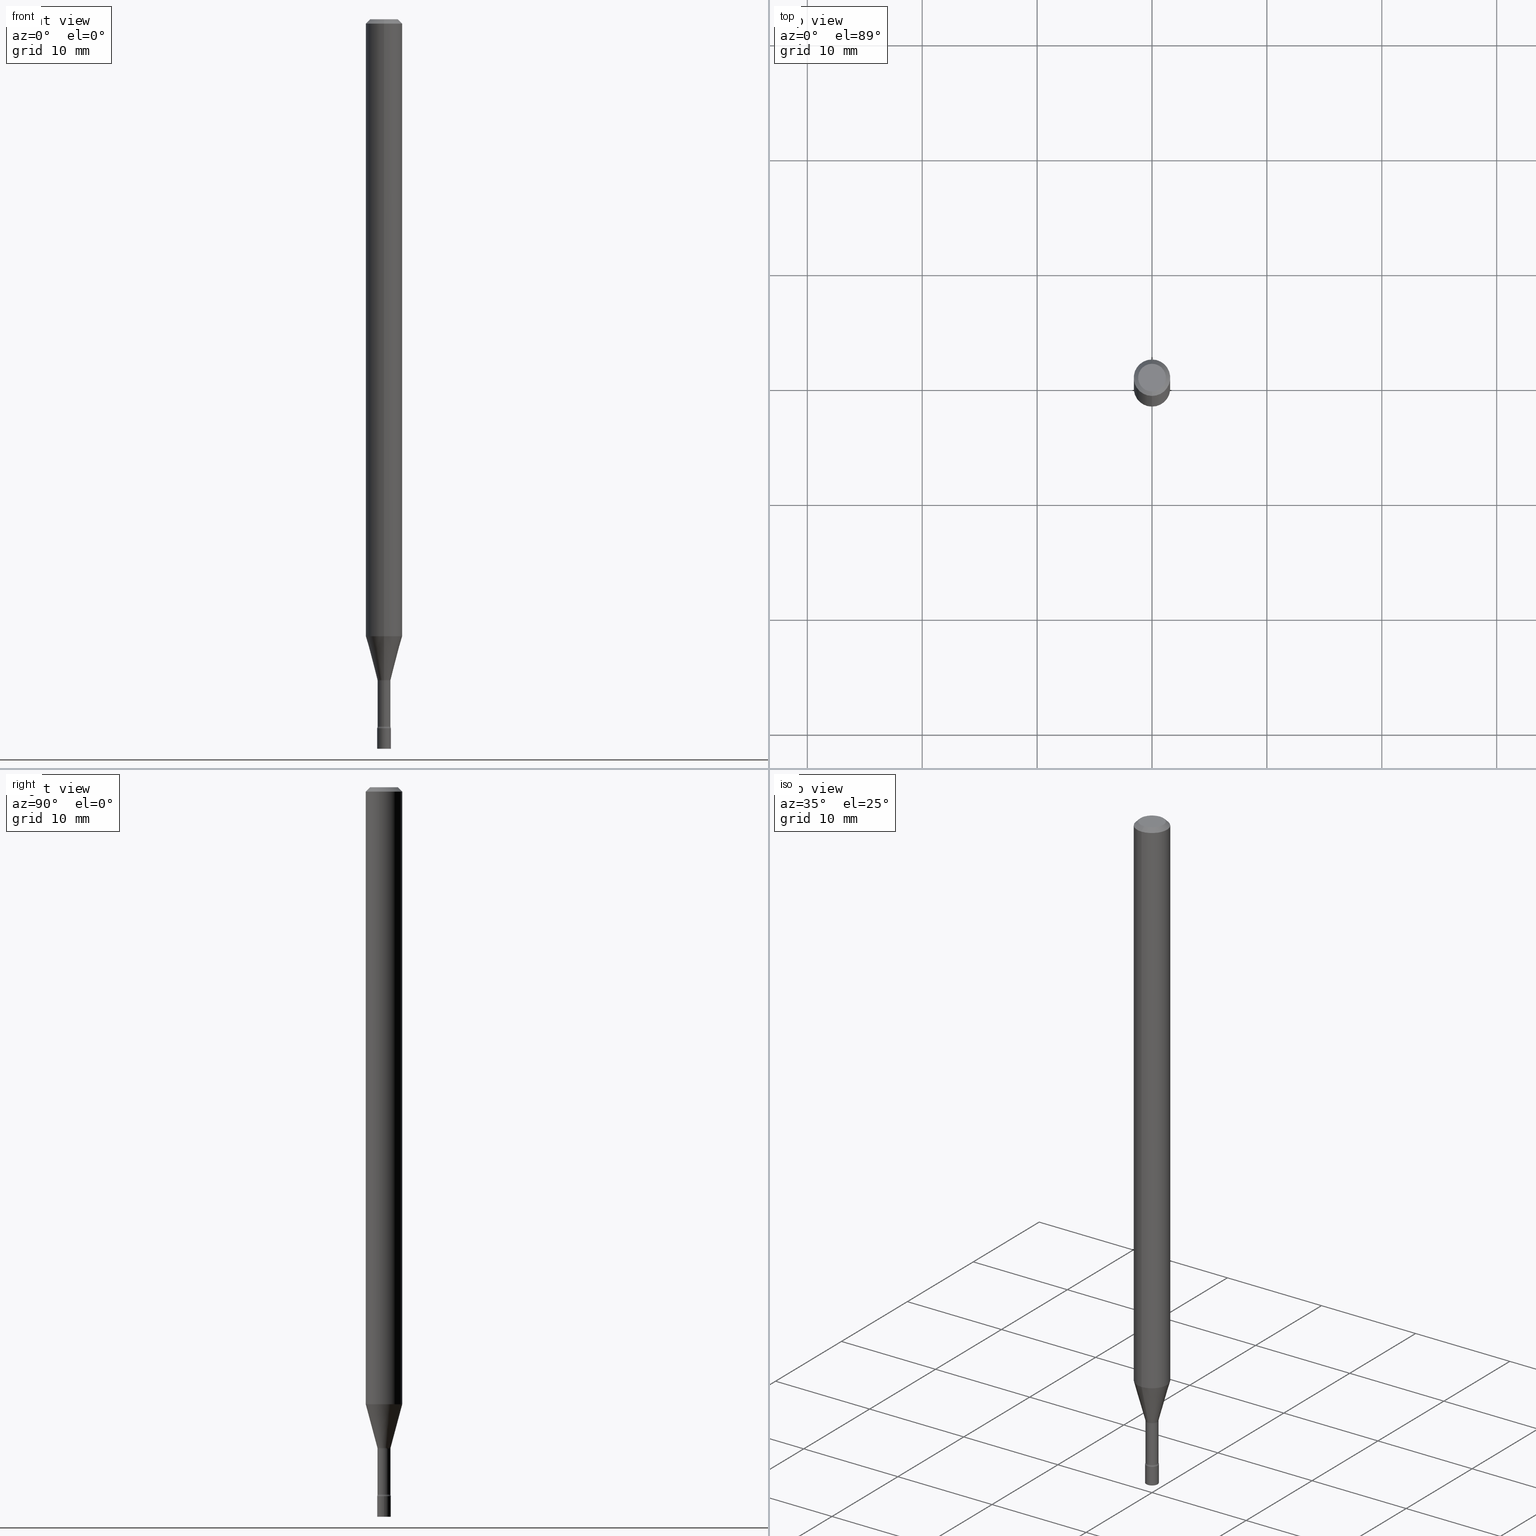
[diagram: canonical four-view strip — front | top / right | iso, engineering-drawing reading convention]
A machine part, canonical four-view strip (front | top / right | iso — engineering-drawing reading convention). The complete STEP part file that produces these views, byte-faithful:
ISO-10303-21;
HEADER;
FILE_DESCRIPTION (( 'STEP AP203' ),
    '1' );
FILE_NAME ('03544.STEP',
    '2024-03-08T21:44:47',
    ( '' ),
    ( '' ),
    'SwSTEP 2.0',
    'SolidWorks 2023',
    '' );
FILE_SCHEMA (( 'CONFIG_CONTROL_DESIGN' ));
ENDSEC;

DATA;
#1 = VERTEX_POINT ( 'NONE', #160 ) ;
#2 = CARTESIAN_POINT ( 'NONE',  ( 6.113672015462842613E-29, -8.728703347107864943E-15, -2.500000000000000000 ) ) ;
#3 = EDGE_CURVE ( 'NONE', #193, #208, #375, .T. ) ;
#4 = CARTESIAN_POINT ( 'NONE',  ( 4.440892098501140893E-16, 0.06249999999999258926, -2.114225147374217961 ) ) ;
#5 = ORIENTED_EDGE ( 'NONE', *, *, #495, .F. ) ;
#6 = DIRECTION ( 'NONE',  ( 1.000000000000000000, -6.982962677686265922E-15, 4.876176775795935793E-29 ) ) ;
#7 = DIRECTION ( 'NONE',  ( 2.438088387897960049E-29, -3.491481338843145188E-15, -1.000000000000000000 ) ) ;
#8 = ADVANCED_FACE ( 'NONE', ( #422 ), #297, .T. ) ;
#9 = EDGE_CURVE ( 'NONE', #315, #477, #474, .T. ) ;
#10 = FACE_OUTER_BOUND ( 'NONE', #309, .T. ) ;
#11 = CLOSED_SHELL ( 'NONE', ( #349, #296, #293, #503 ) ) ;
#12 = AXIS2_PLACEMENT_3D ( 'NONE', #249, #53, #165 ) ;
#13 = CARTESIAN_POINT ( 'NONE',  ( 3.668184765180877041E-31, -5.237248421261169202E-17, -0.01500000000000003067 ) ) ;
#14 = PERSON_AND_ORGANIZATION ( #132, #199 ) ;
#15 = EDGE_CURVE ( 'NONE', #400, #444, #18, .T. ) ;
#16 = DIRECTION ( 'NONE',  ( 2.445456510120580117E-29, -3.491498947507439183E-15, -1.000000000000000000 ) ) ;
#17 = MECHANICAL_CONTEXT ( 'NONE', #201, 'mechanical' ) ;
#18 = LINE ( 'NONE', #461, #106 ) ;
#19 = COORDINATED_UNIVERSAL_TIME_OFFSET ( 5, 0, .BEHIND. ) ;
#20 = VECTOR ( 'NONE', #73, 39.37007874015748143 ) ;
#21 = LOCAL_TIME ( 16, 44, 47.00000000000000000, #378 ) ;
#22 = CC_DESIGN_PERSON_AND_ORGANIZATION_ASSIGNMENT ( #63, #32, ( #162 ) ) ;
#23 = DIRECTION ( 'NONE',  ( -2.445456510120579836E-29, 3.491498947507438789E-15, 1.000000000000000000 ) ) ;
#24 = EDGE_CURVE ( 'NONE', #512, #1, #70, .T. ) ;
#25 = DIRECTION ( 'NONE',  ( 6.982962677686265922E-15, 1.000000000000000000, -3.483106191921935554E-15 ) ) ;
#26 = DIRECTION ( 'NONE',  ( -6.982962677686265922E-15, -1.000000000000000000, 3.491498947507438789E-15 ) ) ;
#27 = ADVANCED_FACE ( 'NONE', ( #382 ), #60, .F. ) ;
#28 = CARTESIAN_POINT ( 'NONE',  ( 0.000000000000000000, 0.000000000000000000, 0.000000000000000000 ) ) ;
#29 = AXIS2_PLACEMENT_3D ( 'NONE', #13, #16, #25 ) ;
#30 = CARTESIAN_POINT ( 'NONE',  ( -1.543234751768110940E-16, -0.02210000000000792234, -2.266974787463810870 ) ) ;
#31 = DIRECTION ( 'NONE',  ( -2.445456510120580117E-29, 3.491498947507439183E-15, 1.000000000000000000 ) ) ;
#32 = PERSON_AND_ORGANIZATION_ROLE ( 'classification_officer' ) ;
#33 = ORIENTED_EDGE ( 'NONE', *, *, #91, .F. ) ;
#34 = DIRECTION ( 'NONE',  ( 2.445456510120579836E-29, -3.491498947507438789E-15, -1.000000000000000000 ) ) ;
#35 = DIRECTION ( 'NONE',  ( -6.982962677686265922E-15, -1.000000000000000000, 0.000000000000000000 ) ) ;
#36 = DIRECTION ( 'NONE',  ( -1.000000000000000000, 6.982962677686265922E-15, -4.883557194083112901E-29 ) ) ;
#37 = ADVANCED_FACE ( 'NONE', ( #254 ), #242, .T. ) ;
#38 = CARTESIAN_POINT ( 'NONE',  ( 5.534294291500757291E-29, -7.901585088102242025E-15, -2.263092501787272948 ) ) ;
#39 = DIRECTION ( 'NONE',  ( -2.438088387897960049E-29, 3.491481338843145188E-15, 1.000000000000000000 ) ) ;
#40 = DIRECTION ( 'NONE',  ( -6.982962677686265922E-15, -1.000000000000000000, 0.000000000000000000 ) ) ;
#41 = ORIENTED_EDGE ( 'NONE', *, *, #281, .T. ) ;
#42 = APPROVAL ( #301, 'UNSPECIFIED' ) ;
#43 = AXIS2_PLACEMENT_3D ( 'NONE', #295, #34, #145 ) ;
#44 = LOCAL_TIME ( 16, 44, 47.00000000000000000, #363 ) ;
#45 = CARTESIAN_POINT ( 'NONE',  ( 0.000000000000000000, 0.000000000000000000, 0.000000000000000000 ) ) ;
#46 = VERTEX_POINT ( 'NONE', #395 ) ;
#47 = EDGE_LOOP ( 'NONE', ( #111, #52, #210, #147 ) ) ;
#48 = LINE ( 'NONE', #306, #276 ) ;
#49 = VECTOR ( 'NONE', #468, 39.37007874015748143 ) ;
#50 = APPROVAL_STATUS ( 'not_yet_approved' ) ;
#51 = ADVANCED_FACE ( 'NONE', ( #513 ), #200, .T. ) ;
#52 = ORIENTED_EDGE ( 'NONE', *, *, #133, .F. ) ;
#53 = DIRECTION ( 'NONE',  ( 0.000000000000000000, 0.000000000000000000, 1.000000000000000000 ) ) ;
#54 = DIMENSIONAL_EXPONENTS ( 1.000000000000000000, 0.000000000000000000, 0.000000000000000000, 0.000000000000000000, 0.000000000000000000, 0.000000000000000000, 0.000000000000000000 ) ;
#55 = DIRECTION ( 'NONE',  ( -2.445456510120580117E-29, 3.491498947507439183E-15, 1.000000000000000000 ) ) ;
#56 = DIRECTION ( 'NONE',  ( -2.445456510120580117E-29, 3.491498947507439183E-15, 1.000000000000000000 ) ) ;
#57 = DATE_AND_TIME ( #409, #44 ) ;
#58 = CARTESIAN_POINT ( 'NONE',  ( 1.570299446029823003E-16, 0.02210000000000002587, -7.716212673991450177E-17 ) ) ;
#59 = CARTESIAN_POINT ( 'NONE',  ( -0.02350000000000000352, -8.437778216675308581E-15, -2.429000000000000270 ) ) ;
#60 = PLANE ( 'NONE',  #43 ) ;
#61 = AXIS2_PLACEMENT_3D ( 'NONE', #195, #311, #345 ) ;
#62 = AXIS2_PLACEMENT_3D ( 'NONE', #124, #509, #146 ) ;
#63 = PERSON_AND_ORGANIZATION ( #132, #199 ) ;
#64 = CC_DESIGN_PERSON_AND_ORGANIZATION_ASSIGNMENT ( #458, #224, ( #404 ) ) ;
#65 = DIRECTION ( 'NONE',  ( -2.445456510120580117E-29, 3.491498947507439183E-15, 1.000000000000000000 ) ) ;
#66 = DIRECTION ( 'NONE',  ( 1.000000000000000000, -6.982962677686269866E-15, 0.000000000000000000 ) ) ;
#67 = DATE_AND_TIME ( #298, #442 ) ;
#68 = DIRECTION ( 'NONE',  ( -6.982962677686265922E-15, -1.000000000000000000, 3.491498947507439183E-15 ) ) ;
#69 = ORIENTED_EDGE ( 'NONE', *, *, #483, .F. ) ;
#70 = CIRCLE ( 'NONE', #441, 0.02350000000000000352 ) ;
#71 = CARTESIAN_POINT ( 'NONE',  ( -2.590679153421050798E-16, -0.03710000000000791831, -2.266974787463810870 ) ) ;
#72 = AXIS2_PLACEMENT_3D ( 'NONE', #71, #487, #104 ) ;
#73 = DIRECTION ( 'NONE',  ( -2.445468806185136877E-29, 3.491481338843145188E-15, 1.000000000000000000 ) ) ;
#74 = PRODUCT ( '03544', '03544', '', ( #17 ) ) ;
#75 = ORIENTED_EDGE ( 'NONE', *, *, #98, .F. ) ;
#76 = EDGE_LOOP ( 'NONE', ( #270, #486 ) ) ;
#77 = CARTESIAN_POINT ( 'NONE',  ( -0.02350000000000000352, -8.437778216675308581E-15, -2.500000000000000000 ) ) ;
#78 = MANIFOLD_SOLID_BREP ( 'Body-Move/Copy2[2]', #119 ) ;
#79 = PLANE ( 'NONE',  #289 ) ;
#80 = DIRECTION ( 'NONE',  ( -2.445456510120580117E-29, 3.491498947507439183E-15, 1.000000000000000000 ) ) ;
#81 = AXIS2_PLACEMENT_3D ( 'NONE', #388, #36, #341 ) ;
#82 = CC_DESIGN_SECURITY_CLASSIFICATION ( #162, ( #404 ) ) ;
#83 = EDGE_LOOP ( 'NONE', ( #156, #280, #437, #359 ) ) ;
#84 = DIRECTION ( 'NONE',  ( -2.445456510120580117E-29, 3.491498947507439183E-15, 1.000000000000000000 ) ) ;
#85 = CARTESIAN_POINT ( 'NONE',  ( 5.543788252282594761E-29, -7.915140084455795876E-15, -2.266974787463810870 ) ) ;
#86 = DIRECTION ( 'NONE',  ( -2.445456510120580117E-29, 3.491498947507438789E-15, 1.000000000000000000 ) ) ;
#87 = PRODUCT_DEFINITION ( 'UNKNOWN', '', #404, #211 ) ;
#88 = CIRCLE ( 'NONE', #151, 0.06250000000000000000 ) ;
#89 = DIRECTION ( 'NONE',  ( -2.445456510120580117E-29, 3.491498947507439183E-15, 1.000000000000000000 ) ) ;
#90 = CARTESIAN_POINT ( 'NONE',  ( 5.534294291500757291E-29, -7.901585088102242025E-15, -2.263092501787272948 ) ) ;
#91 = EDGE_CURVE ( 'NONE', #516, #1, #153, .T. ) ;
#92 = CIRCLE ( 'NONE', #81, 0.01499999999999997689 ) ;
#93 =( NAMED_UNIT ( * ) SI_UNIT ( $, .STERADIAN. ) SOLID_ANGLE_UNIT ( ) );
#94 = CIRCLE ( 'NONE', #120, 0.02350000000000000352 ) ;
#95 = EDGE_CURVE ( 'NONE', #46, #315, #92, .T. ) ;
#96 = EDGE_LOOP ( 'NONE', ( #272, #489, #343, #479 ) ) ;
#97 = ADVANCED_FACE ( 'NONE', ( #425 ), #222, .F. ) ;
#98 = EDGE_CURVE ( 'NONE', #208, #400, #103, .T. ) ;
#99 = CIRCLE ( 'NONE', #188, 0.06250000000000000000 ) ;
#100 = VECTOR ( 'NONE', #144, 39.37007874015749564 ) ;
#101 = LINE ( 'NONE', #429, #134 ) ;
#102 = FACE_OUTER_BOUND ( 'NONE', #123, .T. ) ;
#103 = LINE ( 'NONE', #140, #433 ) ;
#104 = DIRECTION ( 'NONE',  ( -6.982962677686265133E-15, -1.000000000000000000, 0.000000000000000000 ) ) ;
#105 = VERTEX_POINT ( 'NONE', #464 ) ;
#106 = VECTOR ( 'NONE', #176, 39.37007874015748143 ) ;
#107 = DIRECTION ( 'NONE',  ( -2.445456510120580117E-29, 3.491498947507439183E-15, 1.000000000000000000 ) ) ;
#108 = CIRCLE ( 'NONE', #368, 0.02210000000000000853 ) ;
#109 = EDGE_CURVE ( 'NONE', #319, #400, #88, .T. ) ;
#110 = ORIENTED_EDGE ( 'NONE', *, *, #365, .T. ) ;
#111 = ORIENTED_EDGE ( 'NONE', *, *, #332, .F. ) ;
#112 = DIRECTION ( 'NONE',  ( 1.000000000000000000, -6.982962677686265922E-15, 4.876176775795935793E-29 ) ) ;
#113 = FACE_OUTER_BOUND ( 'NONE', #116, .T. ) ;
#114 = ORIENTED_EDGE ( 'NONE', *, *, #495, .T. ) ;
#115 = EDGE_CURVE ( 'NONE', #265, #472, #403, .T. ) ;
#116 = EDGE_LOOP ( 'NONE', ( #243, #352, #519, #196 ) ) ;
#117 = DIRECTION ( 'NONE',  ( 1.000000000000000000, -6.982962677686228056E-15, 0.000000000000000000 ) ) ;
#118 = CIRCLE ( 'NONE', #177, 0.04749999999999999362 ) ;
#119 = CLOSED_SHELL ( 'NONE', ( #514, #358, #408, #8, #51, #360, #37, #258, #398, #27, #97, #179, #305, #436 ) ) ;
#120 = AXIS2_PLACEMENT_3D ( 'NONE', #484, #239, #401 ) ;
#121 = CARTESIAN_POINT ( 'NONE',  ( 5.940043730223697314E-29, -8.480808172050001970E-15, -2.429000000000000270 ) ) ;
#122 = ORIENTED_EDGE ( 'NONE', *, *, #135, .T. ) ;
#123 = EDGE_LOOP ( 'NONE', ( #269, #41, #440, #5 ) ) ;
#124 = CARTESIAN_POINT ( 'NONE',  ( 5.543816127150929473E-29, -7.915100166057801279E-15, -2.266974787463810870 ) ) ;
#125 = DIRECTION ( 'NONE',  ( -2.445456510120580117E-29, 3.491498947507439183E-15, 1.000000000000000000 ) ) ;
#126 = CARTESIAN_POINT ( 'NONE',  ( 1.669775429036828319E-16, 0.02349999999999150685, -2.429000000000000270 ) ) ;
#127 = CARTESIAN_POINT ( 'NONE',  ( 5.170245650506924061E-29, -7.381814876850842660E-15, -2.114225147374217961 ) ) ;
#128 = ORIENTED_EDGE ( 'NONE', *, *, #247, .T. ) ;
#129 = CIRCLE ( 'NONE', #161, 0.06250000000000000000 ) ;
#130 = CARTESIAN_POINT ( 'NONE',  ( 0.02350000000000000352, -8.892802970033491011E-15, -2.500000000000000000 ) ) ;
#131 = CARTESIAN_POINT ( 'NONE',  ( 7.070566630352411085E-46, -1.009499692429182059E-31, -2.891307451631506253E-17 ) ) ;
#132 = PERSON ( 'UNSPECIFIED', 'UNSPECIFIED', 'UNSPECIFIED', ('UNSPECIFIED'), ('UNSPECIFIED'), ('UNSPECIFIED') ) ;
#133 = EDGE_CURVE ( 'NONE', #472, #265, #118, .T. ) ;
#134 = VECTOR ( 'NONE', #505, 39.37007874015748143 ) ;
#135 = EDGE_CURVE ( 'NONE', #477, #315, #366, .T. ) ;
#136 = SHAPE_DEFINITION_REPRESENTATION ( #342, #212 ) ;
#137 = DIRECTION ( 'NONE',  ( -6.982962677686265922E-15, -1.000000000000000000, 4.370956789862821150E-15 ) ) ;
#138 = EDGE_CURVE ( 'NONE', #149, #351, #410, .T. ) ;
#139 = CALENDAR_DATE ( 2024, 8, 3 ) ;
#140 = CARTESIAN_POINT ( 'NONE',  ( 1.606616180941370852E-16, 0.02261111260565608697, -2.263092501787272948 ) ) ;
#141 = AXIS2_PLACEMENT_3D ( 'NONE', #379, #182, #186 ) ;
#142 = DIRECTION ( 'NONE',  ( -6.982962677686265922E-15, -1.000000000000000000, 3.491498947507439183E-15 ) ) ;
#143 = CIRCLE ( 'NONE', #221, 0.01500000000000002720 ) ;
#144 = DIRECTION ( 'NONE',  ( -1.807323732225328562E-15, -0.2588190451025179639, 0.9659258262890689783 ) ) ;
#145 = DIRECTION ( 'NONE',  ( 6.982962677686265922E-15, 1.000000000000000000, -3.491498947507438789E-15 ) ) ;
#146 = DIRECTION ( 'NONE',  ( -6.982962677686265922E-15, -1.000000000000000000, 3.491498947507439183E-15 ) ) ;
#147 = ORIENTED_EDGE ( 'NONE', *, *, #483, .T. ) ;
#148 = CARTESIAN_POINT ( 'NONE',  ( 0.000000000000000000, 0.000000000000000000, 0.000000000000000000 ) ) ;
#149 = VERTEX_POINT ( 'NONE', #30 ) ;
#150 = ORIENTED_EDGE ( 'NONE', *, *, #312, .F. ) ;
#151 = AXIS2_PLACEMENT_3D ( 'NONE', #127, #217, #164 ) ;
#152 = AXIS2_PLACEMENT_3D ( 'NONE', #148, #317, #267 ) ;
#153 = LINE ( 'NONE', #432, #20 ) ;
#154 = ORIENTED_EDGE ( 'NONE', *, *, #15, .F. ) ;
#155 = ORIENTED_EDGE ( 'NONE', *, *, #338, .T. ) ;
#156 = ORIENTED_EDGE ( 'NONE', *, *, #460, .F. ) ;
#157 = ORIENTED_EDGE ( 'NONE', *, *, #245, .F. ) ;
#158 = ORIENTED_EDGE ( 'NONE', *, *, #183, .F. ) ;
#159 = DIRECTION ( 'NONE',  ( -2.445468806185136597E-29, 3.491481338843145583E-15, 1.000000000000000000 ) ) ;
#160 = CARTESIAN_POINT ( 'NONE',  ( 0.02350000000000000352, -8.644907794975628038E-15, -2.429000000000000270 ) ) ;
#161 = AXIS2_PLACEMENT_3D ( 'NONE', #374, #501, #137 ) ;
#162 = SECURITY_CLASSIFICATION ( '', '', #504 ) ;
#163 = CYLINDRICAL_SURFACE ( 'NONE', #152, 0.02210000000000002587 ) ;
#164 = DIRECTION ( 'NONE',  ( -6.982962677686265922E-15, -1.000000000000000000, 4.370956789862821150E-15 ) ) ;
#165 = DIRECTION ( 'NONE',  ( 1.000000000000000000, 0.000000000000000000, 0.000000000000000000 ) ) ;
#166 = UNCERTAINTY_MEASURE_WITH_UNIT (LENGTH_MEASURE( 1.000000000000000082E-05 ), #406, 'distance_accuracy_value', 'NONE');
#167 = DIRECTION ( 'NONE',  ( 7.105427357601000281E-15, 1.000000000000000000, 0.000000000000000000 ) ) ;
#168 = EDGE_CURVE ( 'NONE', #105, #46, #384, .T. ) ;
#169 = AXIS2_PLACEMENT_3D ( 'NONE', #244, #89, #327 ) ;
#170 = CC_DESIGN_APPROVAL ( #333, ( #404 ) ) ;
#171 = CARTESIAN_POINT ( 'NONE',  ( 1.640996229256884133E-16, 0.02349999999999127440, -2.500000000000000000 ) ) ;
#172 = COORDINATED_UNIVERSAL_TIME_OFFSET ( 5, 0, .BEHIND. ) ;
#173 = CARTESIAN_POINT ( 'NONE',  ( 5.940013863082888993E-29, -8.480850943495569256E-15, -2.429000000000000270 ) ) ;
#174 = PERSON_AND_ORGANIZATION_ROLE ( 'design_owner' ) ;
#175 = DIRECTION ( 'NONE',  ( -6.982962677686265922E-15, -1.000000000000000000, 0.000000000000000000 ) ) ;
#176 = DIRECTION ( 'NONE',  ( -2.445456510120580117E-29, 3.491498947507438789E-15, 1.000000000000000000 ) ) ;
#177 = AXIS2_PLACEMENT_3D ( 'NONE', #131, #56, #496 ) ;
#178 = LOCAL_TIME ( 16, 44, 47.00000000000000000, #19 ) ;
#179 = ADVANCED_FACE ( 'NONE', ( #467 ), #357, .F. ) ;
#180 = CARTESIAN_POINT ( 'NONE',  ( 0.000000000000000000, 0.000000000000000000, 0.000000000000000000 ) ) ;
#181 = DATE_TIME_ROLE ( 'classification_date' ) ;
#182 = DIRECTION ( 'NONE',  ( -2.445456510120580117E-29, 3.491498947507439183E-15, 1.000000000000000000 ) ) ;
#183 = EDGE_CURVE ( 'NONE', #472, #444, #101, .T. ) ;
#184 = DIRECTION ( 'NONE',  ( -2.445456510120580117E-29, 3.491498947507439183E-15, 1.000000000000000000 ) ) ;
#185 = CARTESIAN_POINT ( 'NONE',  ( 5.534294291500757291E-29, -7.901585088102242025E-15, -2.263092501787272948 ) ) ;
#186 = DIRECTION ( 'NONE',  ( -6.982962677686265922E-15, -1.000000000000000000, 0.000000000000000000 ) ) ;
#187 = CARTESIAN_POINT ( 'NONE',  ( 5.543788252282594761E-29, -7.915140084455795876E-15, -2.266974787463810870 ) ) ;
#188 = AXIS2_PLACEMENT_3D ( 'NONE', #241, #364, #287 ) ;
#189 = ORIENTED_EDGE ( 'NONE', *, *, #168, .T. ) ;
#190 = APPROVAL_PERSON_ORGANIZATION ( #426, #333, #462 ) ;
#191 = CARTESIAN_POINT ( 'NONE',  ( 5.924569496155794395E-29, -8.458715066898005273E-15, -2.422672283192177645 ) ) ;
#192 = EDGE_LOOP ( 'NONE', ( #430, #189, #114, #268 ) ) ;
#193 = VERTEX_POINT ( 'NONE', #499 ) ;
#194 = LINE ( 'NONE', #223, #49 ) ;
#195 = CARTESIAN_POINT ( 'NONE',  ( 0.000000000000000000, 0.000000000000000000, 0.000000000000000000 ) ) ;
#196 = ORIENTED_EDGE ( 'NONE', *, *, #24, .F. ) ;
#197 = AXIS2_PLACEMENT_3D ( 'NONE', #492, #125, #367 ) ;
#198 = DIRECTION ( 'NONE',  ( -2.445456510120580117E-29, 3.491498947507439183E-15, 1.000000000000000000 ) ) ;
#199 = ORGANIZATION ( 'UNSPECIFIED', 'UNSPECIFIED', '' ) ;
#200 = CYLINDRICAL_SURFACE ( 'NONE', #61, 0.06250000000000000000 ) ;
#201 = APPLICATION_CONTEXT ( 'configuration controlled 3d designs of mechanical parts and assemblies' ) ;
#202 = FACE_OUTER_BOUND ( 'NONE', #47, .T. ) ;
#203 = ORIENTED_EDGE ( 'NONE', *, *, #460, .T. ) ;
#204 = DIRECTION ( 'NONE',  ( -2.445468806185136597E-29, 3.491481338843145583E-15, 1.000000000000000000 ) ) ;
#205 = CIRCLE ( 'NONE', #226, 0.02261111260566398690 ) ;
#206 = ORIENTED_EDGE ( 'NONE', *, *, #312, .T. ) ;
#207 = PERSON_AND_ORGANIZATION_ROLE ( 'creator' ) ;
#208 = VERTEX_POINT ( 'NONE', #292 ) ;
#209 = PERSON_AND_ORGANIZATION ( #132, #199 ) ;
#210 = ORIENTED_EDGE ( 'NONE', *, *, #183, .T. ) ;
#211 = DESIGN_CONTEXT ( 'detailed design', #266, 'design' ) ;
#212 = ADVANCED_BREP_SHAPE_REPRESENTATION ( '03544', ( #421, #78, #12 ), #500 ) ;
#213 = CARTESIAN_POINT ( 'NONE',  ( 3.840629472727447874E-16, 0.04749999999999999362, -1.947592745229183872E-16 ) ) ;
#214 = AXIS2_PLACEMENT_3D ( 'NONE', #121, #204, #353 ) ;
#215 = AXIS2_PLACEMENT_3D ( 'NONE', #325, #55, #286 ) ;
#216 = FACE_OUTER_BOUND ( 'NONE', #235, .T. ) ;
#217 = DIRECTION ( 'NONE',  ( -2.445456510120580117E-29, 3.491498947507439183E-15, 1.000000000000000000 ) ) ;
#218 = EDGE_CURVE ( 'NONE', #400, #319, #129, .T. ) ;
#219 = DIRECTION ( 'NONE',  ( -6.982962677686265922E-15, -1.000000000000000000, 0.000000000000000000 ) ) ;
#220 = AXIS2_PLACEMENT_3D ( 'NONE', #336, #184, #142 ) ;
#221 = AXIS2_PLACEMENT_3D ( 'NONE', #387, #407, #167 ) ;
#222 = PLANE ( 'NONE',  #411 ) ;
#223 = CARTESIAN_POINT ( 'NONE',  ( -0.02350000000000000352, 1.669775429036235687E-16, -1.155949746209903035E-30 ) ) ;
#224 = PERSON_AND_ORGANIZATION_ROLE ( 'design_supplier' ) ;
#225 = DIRECTION ( 'NONE',  ( 7.105427357600997914E-15, 1.000000000000000000, 0.000000000000000000 ) ) ;
#226 = AXIS2_PLACEMENT_3D ( 'NONE', #294, #198, #314 ) ;
#227 = ORIENTED_EDGE ( 'NONE', *, *, #218, .T. ) ;
#228 = ORIENTED_EDGE ( 'NONE', *, *, #391, .T. ) ;
#229 = DIRECTION ( 'NONE',  ( -2.445456510120580117E-29, 3.491498947507438789E-15, 1.000000000000000000 ) ) ;
#230 = ORIENTED_EDGE ( 'NONE', *, *, #115, .F. ) ;
#231 = ORIENTED_EDGE ( 'NONE', *, *, #320, .F. ) ;
#232 = FACE_OUTER_BOUND ( 'NONE', #348, .T. ) ;
#233 = ORIENTED_EDGE ( 'NONE', *, *, #109, .T. ) ;
#234 = CARTESIAN_POINT ( 'NONE',  ( 5.940043730223697314E-29, -8.480808172050001970E-15, -2.429000000000000270 ) ) ;
#235 = EDGE_LOOP ( 'NONE', ( #157, #203, #110, #443 ) ) ;
#236 = ORIENTED_EDGE ( 'NONE', *, *, #326, .F. ) ;
#237 = CIRCLE ( 'NONE', #214, 0.02350000000000000352 ) ;
#238 = AXIS2_PLACEMENT_3D ( 'NONE', #38, #31, #35 ) ;
#239 = DIRECTION ( 'NONE',  ( -2.445468806185136597E-29, 3.491481338843145583E-15, 1.000000000000000000 ) ) ;
#240 = APPLICATION_PROTOCOL_DEFINITION ( 'international standard', 'config_control_design', 1994, #201 ) ;
#241 = CARTESIAN_POINT ( 'NONE',  ( 3.668184765180877041E-31, -5.237248421261169202E-17, -0.01500000000000003067 ) ) ;
#242 = CONICAL_SURFACE ( 'NONE', #329, 0.02261111260566398690, 0.2617993877991501295 ) ;
#243 = ORIENTED_EDGE ( 'NONE', *, *, #338, .F. ) ;
#244 = CARTESIAN_POINT ( 'NONE',  ( 5.940013863082888993E-29, -8.480850943495569256E-15, -2.429000000000000270 ) ) ;
#245 = EDGE_CURVE ( 'NONE', #208, #193, #205, .T. ) ;
#246 = ORIENTED_EDGE ( 'NONE', *, *, #416, .F. ) ;
#247 = EDGE_CURVE ( 'NONE', #516, #389, #517, .T. ) ;
#248 = CC_DESIGN_PERSON_AND_ORGANIZATION_ASSIGNMENT ( #260, #423, ( #404 ) ) ;
#249 = CARTESIAN_POINT ( 'NONE',  ( 0.000000000000000000, 0.000000000000000000, 0.000000000000000000 ) ) ;
#250 = APPROVAL_ROLE ( '' ) ;
#251 = CARTESIAN_POINT ( 'NONE',  ( -3.773273898774340269E-16, -0.04749999999999999362, 1.369331254902882868E-16 ) ) ;
#252 = VECTOR ( 'NONE', #229, 39.37007874015748143 ) ;
#253 = EDGE_CURVE ( 'NONE', #386, #444, #99, .T. ) ;
#254 = FACE_OUTER_BOUND ( 'NONE', #485, .T. ) ;
#255 = CIRCLE ( 'NONE', #498, 0.01499999999999997689 ) ;
#256 = APPROVAL_DATE_TIME ( #67, #333 ) ;
#257 = APPROVAL_PERSON_ORGANIZATION ( #209, #515, #250 ) ;
#258 = ADVANCED_FACE ( 'NONE', ( #10 ), #323, .T. ) ;
#259 = CARTESIAN_POINT ( 'NONE',  ( 3.668184765180877041E-31, -5.237248421261169202E-17, -0.01500000000000003067 ) ) ;
#260 = PERSON_AND_ORGANIZATION ( #132, #199 ) ;
#261 = LINE ( 'NONE', #431, #252 ) ;
#262 = AXIS2_PLACEMENT_3D ( 'NONE', #334, #65, #424 ) ;
#263 = AXIS2_PLACEMENT_3D ( 'NONE', #171, #7, #322 ) ;
#264 = EDGE_LOOP ( 'NONE', ( #230, #480, #284, #158 ) ) ;
#265 = VERTEX_POINT ( 'NONE', #251 ) ;
#266 = APPLICATION_CONTEXT ( 'configuration controlled 3d designs of mechanical parts and assemblies' ) ;
#267 = DIRECTION ( 'NONE',  ( -6.982962677686265922E-15, -1.000000000000000000, 3.491498947507439578E-15 ) ) ;
#268 = ORIENTED_EDGE ( 'NONE', *, *, #365, .F. ) ;
#269 = ORIENTED_EDGE ( 'NONE', *, *, #320, .T. ) ;
#270 = ORIENTED_EDGE ( 'NONE', *, *, #133, .T. ) ;
#271 = FACE_OUTER_BOUND ( 'NONE', #313, .T. ) ;
#272 = ORIENTED_EDGE ( 'NONE', *, *, #3, .T. ) ;
#273 = DIRECTION ( 'NONE',  ( 1.000000000000000000, -6.982962677686265922E-15, 4.876176775795935793E-29 ) ) ;
#274 = ORIENTED_EDGE ( 'NONE', *, *, #95, .F. ) ;
#275 = DIRECTION ( 'NONE',  ( 1.000000000000000000, -7.105427357601001070E-15, 4.926315724186025825E-29 ) ) ;
#276 = VECTOR ( 'NONE', #300, 39.37007874015748143 ) ;
#277 = CC_DESIGN_APPROVAL ( #515, ( #87 ) ) ;
#278 = CARTESIAN_POINT ( 'NONE',  ( -1.578925554262577325E-16, -0.02261111260567189030, -2.263092501787272948 ) ) ;
#279 = CARTESIAN_POINT ( 'NONE',  ( -1.543234751768666594E-16, -0.02210000000000002587, 7.716212673991450177E-17 ) ) ;
#280 = ORIENTED_EDGE ( 'NONE', *, *, #3, .F. ) ;
#281 = EDGE_CURVE ( 'NONE', #105, #351, #412, .T. ) ;
#282 = DIRECTION ( 'NONE',  ( -2.445456510120580117E-29, 3.491498947507439183E-15, 1.000000000000000000 ) ) ;
#283 = VECTOR ( 'NONE', #86, 39.37007874015748143 ) ;
#284 = ORIENTED_EDGE ( 'NONE', *, *, #253, .T. ) ;
#285 = LENGTH_MEASURE_WITH_UNIT ( LENGTH_MEASURE( 0.02539999999999999897 ), #451 );
#286 = DIRECTION ( 'NONE',  ( -6.982962677686265922E-15, -1.000000000000000000, 3.483106191921935554E-15 ) ) ;
#287 = DIRECTION ( 'NONE',  ( -6.982962677686265922E-15, -1.000000000000000000, 3.483106191921935554E-15 ) ) ;
#288 = CALENDAR_DATE ( 2024, 8, 3 ) ;
#289 = AXIS2_PLACEMENT_3D ( 'NONE', #234, #39, #273 ) ;
#290 = DIRECTION ( 'NONE',  ( -6.982962677686265922E-15, -1.000000000000000000, 0.000000000000000000 ) ) ;
#291 = COORDINATED_UNIVERSAL_TIME_OFFSET ( 5, 0, .BEHIND. ) ;
#292 = CARTESIAN_POINT ( 'NONE',  ( 3.023754139721258091E-16, 0.02261111260565609044, -2.263092501787272948 ) ) ;
#293 = ADVANCED_FACE ( 'NONE', ( #113 ), #399, .T. ) ;
#294 = CARTESIAN_POINT ( 'NONE',  ( 5.534294291500757291E-29, -7.901585088102242025E-15, -2.263092501787272948 ) ) ;
#295 = CARTESIAN_POINT ( 'NONE',  ( 3.316907271900976096E-16, 0.04749999999999999362, -1.803027372647608806E-16 ) ) ;
#296 = ADVANCED_FACE ( 'NONE', ( #271 ), #79, .T. ) ;
#297 = CONICAL_SURFACE ( 'NONE', #29, 0.06250000000000000000, 0.7853981633974483900 ) ;
#298 = CALENDAR_DATE ( 2024, 8, 3 ) ;
#299 = CC_DESIGN_APPROVAL ( #42, ( #162 ) ) ;
#300 = DIRECTION ( 'NONE',  ( -4.851104656540964275E-15, -0.7071067811865500152, -0.7071067811865450192 ) ) ;
#301 = APPROVAL_STATUS ( 'not_yet_approved' ) ;
#302 = CARTESIAN_POINT ( 'NONE',  ( 2.636113549670565381E-16, 0.03709999999999156334, -2.422672283192177645 ) ) ;
#303 = CARTESIAN_POINT ( 'NONE',  ( 4.440892098501146810E-16, 0.06249999999999995837, -0.01500000000000024751 ) ) ;
#304 = DIRECTION ( 'NONE',  ( -2.445456510120580117E-29, 3.491498947507439183E-15, 1.000000000000000000 ) ) ;
#305 = ADVANCED_FACE ( 'NONE', ( #438 ), #457, .T. ) ;
#306 = CARTESIAN_POINT ( 'NONE',  ( -4.287811248607203282E-16, -0.06250000000000005551, -0.01499999999999981209 ) ) ;
#307 = CIRCLE ( 'NONE', #72, 0.01500000000000002720 ) ;
#308 = EDGE_LOOP ( 'NONE', ( #150, #231, #394, #390 ) ) ;
#309 = EDGE_LOOP ( 'NONE', ( #154, #227, #447, #69 ) ) ;
#310 = DIRECTION ( 'NONE',  ( -2.445468806185136597E-29, 3.491481338843145583E-15, 1.000000000000000000 ) ) ;
#311 = DIRECTION ( 'NONE',  ( -2.445456510120580117E-29, 3.491498947507439183E-15, 1.000000000000000000 ) ) ;
#312 = EDGE_CURVE ( 'NONE', #105, #477, #255, .T. ) ;
#313 = EDGE_LOOP ( 'NONE', ( #347, #475 ) ) ;
#314 = DIRECTION ( 'NONE',  ( -6.982962677686265922E-15, -1.000000000000000000, 0.000000000000000000 ) ) ;
#315 = VERTEX_POINT ( 'NONE', #340 ) ;
#316 = ORIENTED_EDGE ( 'NONE', *, *, #168, .F. ) ;
#317 = DIRECTION ( 'NONE',  ( -2.445456510120580117E-29, 3.491498947507439183E-15, 1.000000000000000000 ) ) ;
#318 = AXIS2_PLACEMENT_3D ( 'NONE', #488, #493, #413 ) ;
#319 = VERTEX_POINT ( 'NONE', #511 ) ;
#320 = EDGE_CURVE ( 'NONE', #46, #105, #396, .T. ) ;
#321 = LINE ( 'NONE', #279, #450 ) ;
#322 = DIRECTION ( 'NONE',  ( -1.000000000000000000, 6.982962677686265922E-15, -4.876176775795935793E-29 ) ) ;
#323 = CYLINDRICAL_SURFACE ( 'NONE', #197, 0.06250000000000000000 ) ;
#324 = TOROIDAL_SURFACE ( 'NONE', #420, 0.03710000000000002185, 0.01499999999999997516 ) ;
#325 = CARTESIAN_POINT ( 'NONE',  ( 3.668184765180877041E-31, -5.237248421261169202E-17, -0.01500000000000003067 ) ) ;
#326 = EDGE_CURVE ( 'NONE', #1, #512, #237, .T. ) ;
#327 = DIRECTION ( 'NONE',  ( -6.982962677686265922E-15, -1.000000000000000000, 0.000000000000000000 ) ) ;
#328 = DIRECTION ( 'NONE',  ( -2.445456510120580117E-29, 3.491498947507438789E-15, 1.000000000000000000 ) ) ;
#329 = AXIS2_PLACEMENT_3D ( 'NONE', #185, #80, #40 ) ;
#330 = AXIS2_PLACEMENT_3D ( 'NONE', #259, #392, #427 ) ;
#331 = CARTESIAN_POINT ( 'NONE',  ( 5.940043730223697314E-29, -8.480808172050001970E-15, -2.429000000000000270 ) ) ;
#332 = EDGE_CURVE ( 'NONE', #265, #386, #48, .T. ) ;
#333 = APPROVAL ( #373, 'UNSPECIFIED' ) ;
#334 = CARTESIAN_POINT ( 'NONE',  ( 5.924539706821000383E-29, -8.458757726920932934E-15, -2.422672283192177645 ) ) ;
#335 = CALENDAR_DATE ( 2024, 8, 3 ) ;
#336 = CARTESIAN_POINT ( 'NONE',  ( 5.924569496155794395E-29, -8.458715066898005273E-15, -2.422672283192177645 ) ) ;
#337 = FACE_OUTER_BOUND ( 'NONE', #83, .T. ) ;
#338 = EDGE_CURVE ( 'NONE', #389, #512, #194, .T. ) ;
#339 = ORIENTED_EDGE ( 'NONE', *, *, #9, .F. ) ;
#340 = CARTESIAN_POINT ( 'NONE',  ( -1.640996229255677915E-16, -0.02350000000000847244, -2.429000000000000270 ) ) ;
#341 = DIRECTION ( 'NONE',  ( -6.982962677686262766E-15, -1.000000000000000000, 0.000000000000000000 ) ) ;
#342 = PRODUCT_DEFINITION_SHAPE ( 'NONE', 'NONE',  #87 ) ;
#343 = ORIENTED_EDGE ( 'NONE', *, *, #109, .F. ) ;
#344 = ORIENTED_EDGE ( 'NONE', *, *, #253, .F. ) ;
#345 = DIRECTION ( 'NONE',  ( -6.982962677686265922E-15, -1.000000000000000000, 3.491498947507438789E-15 ) ) ;
#346 = AXIS2_PLACEMENT_3D ( 'NONE', #180, #304, #393 ) ;
#347 = ORIENTED_EDGE ( 'NONE', *, *, #326, .T. ) ;
#348 = EDGE_LOOP ( 'NONE', ( #128, #155, #236, #33 ) ) ;
#349 = ADVANCED_FACE ( 'NONE', ( #232 ), #380, .T. ) ;
#350 = ORIENTED_EDGE ( 'NONE', *, *, #245, .T. ) ;
#351 = VERTEX_POINT ( 'NONE', #470 ) ;
#352 = ORIENTED_EDGE ( 'NONE', *, *, #416, .T. ) ;
#353 = DIRECTION ( 'NONE',  ( 1.000000000000000000, -6.982962677686269866E-15, 0.000000000000000000 ) ) ;
#354 = ORIENTED_EDGE ( 'NONE', *, *, #247, .F. ) ;
#355 = ORIENTED_EDGE ( 'NONE', *, *, #135, .F. ) ;
#356 = DIRECTION ( 'NONE',  ( -2.445468806185136597E-29, 3.491481338843145583E-15, 1.000000000000000000 ) ) ;
#357 = TOROIDAL_SURFACE ( 'NONE', #220, 0.03710000000000002185, 0.01499999999999997516 ) ;
#358 = ADVANCED_FACE ( 'NONE', ( #102 ), #163, .T. ) ;
#359 = ORIENTED_EDGE ( 'NONE', *, *, #138, .T. ) ;
#360 = ADVANCED_FACE ( 'NONE', ( #383 ), #491, .T. ) ;
#361 = CC_DESIGN_PERSON_AND_ORGANIZATION_ASSIGNMENT ( #402, #174, ( #74 ) ) ;
#362 = DATE_AND_TIME ( #288, #385 ) ;
#363 = COORDINATED_UNIVERSAL_TIME_OFFSET ( 5, 0, .BEHIND. ) ;
#364 = DIRECTION ( 'NONE',  ( -2.445456510120580117E-29, 3.491498947507439183E-15, 1.000000000000000000 ) ) ;
#365 = EDGE_CURVE ( 'NONE', #351, #149, #108, .T. ) ;
#366 = CIRCLE ( 'NONE', #169, 0.02350000000000000352 ) ;
#367 = DIRECTION ( 'NONE',  ( -6.982962677686265922E-15, -1.000000000000000000, 3.491498947507438789E-15 ) ) ;
#368 = AXIS2_PLACEMENT_3D ( 'NONE', #187, #107, #435 ) ;
#369 = DIRECTION ( 'NONE',  ( -2.445456510120580117E-29, 3.491498947507439183E-15, 1.000000000000000000 ) ) ;
#370 = APPROVAL_DATE_TIME ( #57, #515 ) ;
#371 = DIRECTION ( 'NONE',  ( -6.982962677686266711E-15, -1.000000000000000000, 3.491498947507439578E-15 ) ) ;
#372 = DIRECTION ( 'NONE',  ( -2.445456510120580117E-29, 3.491498947507439183E-15, 1.000000000000000000 ) ) ;
#373 = APPROVAL_STATUS ( 'not_yet_approved' ) ;
#374 = CARTESIAN_POINT ( 'NONE',  ( 5.170245650506924061E-29, -7.381814876850842660E-15, -2.114225147374217961 ) ) ;
#375 = CIRCLE ( 'NONE', #482, 0.02261111260566398690 ) ;
#376 = AXIS2_PLACEMENT_3D ( 'NONE', #28, #356, #6 ) ;
#377 = DATE_AND_TIME ( #335, #21 ) ;
#378 = COORDINATED_UNIVERSAL_TIME_OFFSET ( 5, 0, .BEHIND. ) ;
#379 = CARTESIAN_POINT ( 'NONE',  ( 5.924539706821000383E-29, -8.458757726920932934E-15, -2.422672283192177645 ) ) ;
#380 = CYLINDRICAL_SURFACE ( 'NONE', #376, 0.02350000000000000352 ) ;
#381 = PRODUCT_RELATED_PRODUCT_CATEGORY ( 'detail', '', ( #74 ) ) ;
#382 = FACE_OUTER_BOUND ( 'NONE', #76, .T. ) ;
#383 = FACE_OUTER_BOUND ( 'NONE', #96, .T. ) ;
#384 = CIRCLE ( 'NONE', #141, 0.02210000000000004322 ) ;
#385 = LOCAL_TIME ( 16, 44, 47.00000000000000000, #172 ) ;
#386 = VERTEX_POINT ( 'NONE', #473 ) ;
#387 = CARTESIAN_POINT ( 'NONE',  ( 2.636113549670525938E-16, 0.03709999999999209069, -2.266974787463810870 ) ) ;
#388 = CARTESIAN_POINT ( 'NONE',  ( -2.590679153421013821E-16, -0.03710000000000848036, -2.422672283192177645 ) ) ;
#389 = VERTEX_POINT ( 'NONE', #77 ) ;
#390 = ORIENTED_EDGE ( 'NONE', *, *, #9, .T. ) ;
#391 = EDGE_CURVE ( 'NONE', #193, #319, #506, .T. ) ;
#392 = DIRECTION ( 'NONE',  ( 2.445456510120580117E-29, -3.491498947507439183E-15, -1.000000000000000000 ) ) ;
#393 = DIRECTION ( 'NONE',  ( -6.982962677686265922E-15, -1.000000000000000000, 3.491498947507439578E-15 ) ) ;
#394 = ORIENTED_EDGE ( 'NONE', *, *, #95, .T. ) ;
#395 = CARTESIAN_POINT ( 'NONE',  ( -1.543234751768075441E-16, -0.02210000000000850520, -2.422672283192177645 ) ) ;
#396 = CIRCLE ( 'NONE', #262, 0.02210000000000004322 ) ;
#397 = CONICAL_SURFACE ( 'NONE', #330, 0.06250000000000000000, 0.7853981633974483900 ) ;
#398 = ADVANCED_FACE ( 'NONE', ( #202 ), #397, .T. ) ;
#399 = CYLINDRICAL_SURFACE ( 'NONE', #490, 0.02350000000000000352 ) ;
#400 = VERTEX_POINT ( 'NONE', #4 ) ;
#401 = DIRECTION ( 'NONE',  ( 1.000000000000000000, -6.982962677686228056E-15, 0.000000000000000000 ) ) ;
#402 = PERSON_AND_ORGANIZATION ( #132, #199 ) ;
#403 = CIRCLE ( 'NONE', #454, 0.04749999999999999362 ) ;
#404 = PRODUCT_DEFINITION_FORMATION_WITH_SPECIFIED_SOURCE ( 'ANY', '', #74, .NOT_KNOWN. ) ;
#405 = DIRECTION ( 'NONE',  ( -2.445456510120580117E-29, 3.491498947507439183E-15, 1.000000000000000000 ) ) ;
#406 =( CONVERSION_BASED_UNIT ( 'INCH', #285 ) LENGTH_UNIT ( ) NAMED_UNIT ( #54 ) );
#407 = DIRECTION ( 'NONE',  ( 1.000000000000000000, -7.105427357601001070E-15, 4.926315724186025825E-29 ) ) ;
#408 = ADVANCED_FACE ( 'NONE', ( #445 ), #324, .F. ) ;
#409 = CALENDAR_DATE ( 2024, 8, 3 ) ;
#410 = CIRCLE ( 'NONE', #448, 0.02210000000000000853 ) ;
#411 = AXIS2_PLACEMENT_3D ( 'NONE', #471, #23, #26 ) ;
#412 = LINE ( 'NONE', #58, #283 ) ;
#413 = DIRECTION ( 'NONE',  ( -6.982962677686265922E-15, -1.000000000000000000, 3.491498947507439183E-15 ) ) ;
#414 = DIRECTION ( 'NONE',  ( 1.839019923739599526E-15, 0.2588190451025248473, 0.9659258262890673130 ) ) ;
#415 = DATE_TIME_ROLE ( 'creation_date' ) ;
#416 = EDGE_CURVE ( 'NONE', #389, #516, #94, .T. ) ;
#417 = CC_DESIGN_PERSON_AND_ORGANIZATION_ASSIGNMENT ( #14, #207, ( #87 ) ) ;
#418 = PERSON_AND_ORGANIZATION ( #132, #199 ) ;
#419 = AXIS2_PLACEMENT_3D ( 'NONE', #2, #159, #117 ) ;
#420 = AXIS2_PLACEMENT_3D ( 'NONE', #191, #84, #68 ) ;
#421 = MANIFOLD_SOLID_BREP ( 'Body-Move/Copy2[1]', #11 ) ;
#422 = FACE_OUTER_BOUND ( 'NONE', #264, .T. ) ;
#423 = PERSON_AND_ORGANIZATION_ROLE ( 'creator' ) ;
#424 = DIRECTION ( 'NONE',  ( -6.982962677686265922E-15, -1.000000000000000000, 0.000000000000000000 ) ) ;
#425 = FACE_OUTER_BOUND ( 'NONE', #476, .T. ) ;
#426 = PERSON_AND_ORGANIZATION ( #132, #199 ) ;
#427 = DIRECTION ( 'NONE',  ( 6.982962677686265922E-15, 1.000000000000000000, -3.483106191921935554E-15 ) ) ;
#428 = APPROVAL_DATE_TIME ( #377, #42 ) ;
#429 = CARTESIAN_POINT ( 'NONE',  ( 4.364351673553919652E-16, 0.06249999999999995143, -0.01500000000000024751 ) ) ;
#430 = ORIENTED_EDGE ( 'NONE', *, *, #281, .F. ) ;
#431 = CARTESIAN_POINT ( 'NONE',  ( -4.364351673553916201E-16, -0.06250000000000000000, 2.182186842192149243E-16 ) ) ;
#432 = CARTESIAN_POINT ( 'NONE',  ( 0.02350000000000000352, -1.640996229256272766E-16, 1.145901542312045115E-30 ) ) ;
#433 = VECTOR ( 'NONE', #414, 39.37007874015747433 ) ;
#434 = EDGE_LOOP ( 'NONE', ( #354, #246 ) ) ;
#435 = DIRECTION ( 'NONE',  ( -6.982962677686265922E-15, -1.000000000000000000, 0.000000000000000000 ) ) ;
#436 = ADVANCED_FACE ( 'NONE', ( #337 ), #507, .F. ) ;
#437 = ORIENTED_EDGE ( 'NONE', *, *, #449, .T. ) ;
#438 = FACE_OUTER_BOUND ( 'NONE', #192, .T. ) ;
#439 = CC_DESIGN_DATE_AND_TIME_ASSIGNMENT ( #362, #415, ( #87 ) ) ;
#440 = ORIENTED_EDGE ( 'NONE', *, *, #138, .F. ) ;
#441 = AXIS2_PLACEMENT_3D ( 'NONE', #331, #502, #66 ) ;
#442 = LOCAL_TIME ( 16, 44, 47.00000000000000000, #291 ) ;
#443 = ORIENTED_EDGE ( 'NONE', *, *, #449, .F. ) ;
#444 = VERTEX_POINT ( 'NONE', #303 ) ;
#445 = FACE_OUTER_BOUND ( 'NONE', #510, .T. ) ;
#446 = FACE_OUTER_BOUND ( 'NONE', #434, .T. ) ;
#447 = ORIENTED_EDGE ( 'NONE', *, *, #459, .T. ) ;
#448 = AXIS2_PLACEMENT_3D ( 'NONE', #85, #405, #175 ) ;
#449 = EDGE_CURVE ( 'NONE', #193, #149, #307, .T. ) ;
#450 = VECTOR ( 'NONE', #328, 39.37007874015748143 ) ;
#451 =( LENGTH_UNIT ( ) NAMED_UNIT ( * ) SI_UNIT ( $, .METRE. ) );
#452 = CARTESIAN_POINT ( 'NONE',  ( 7.070566630352411085E-46, -1.009499692429182059E-31, -2.891307451631506253E-17 ) ) ;
#453 = PLANE ( 'NONE',  #263 ) ;
#454 = AXIS2_PLACEMENT_3D ( 'NONE', #452, #282, #371 ) ;
#455 = CIRCLE ( 'NONE', #215, 0.06250000000000000000 ) ;
#456 = ORIENTED_EDGE ( 'NONE', *, *, #15, .T. ) ;
#457 = CYLINDRICAL_SURFACE ( 'NONE', #346, 0.02210000000000002587 ) ;
#458 = PERSON_AND_ORGANIZATION ( #132, #199 ) ;
#459 = EDGE_CURVE ( 'NONE', #319, #386, #261, .T. ) ;
#460 = EDGE_CURVE ( 'NONE', #208, #351, #143, .T. ) ;
#461 = CARTESIAN_POINT ( 'NONE',  ( 4.440892098500625669E-16, 0.06250000000000000000, -2.182186842192149243E-16 ) ) ;
#462 = APPROVAL_ROLE ( '' ) ;
#463 = AXIS2_PLACEMENT_3D ( 'NONE', #173, #372, #290 ) ;
#464 = CARTESIAN_POINT ( 'NONE',  ( 1.620037437533621853E-16, 0.02209999999999158471, -2.422672283192177645 ) ) ;
#465 = APPROVAL_PERSON_ORGANIZATION ( #418, #42, #508 ) ;
#466 = DATE_AND_TIME ( #139, #178 ) ;
#467 = FACE_OUTER_BOUND ( 'NONE', #308, .T. ) ;
#468 = DIRECTION ( 'NONE',  ( -2.445468806185136877E-29, 3.491481338843145188E-15, 1.000000000000000000 ) ) ;
#469 = EDGE_LOOP ( 'NONE', ( #233, #456, #344, #478 ) ) ;
#470 = CARTESIAN_POINT ( 'NONE',  ( 1.570299446030415388E-16, 0.02209999999999209472, -2.266974787463810870 ) ) ;
#471 = CARTESIAN_POINT ( 'NONE',  ( 1.640996229256866630E-16, 0.02349999999999152073, -2.429000000000000270 ) ) ;
#472 = VERTEX_POINT ( 'NONE', #213 ) ;
#473 = CARTESIAN_POINT ( 'NONE',  ( -4.364351673553912750E-16, -0.06250000000000005551, -0.01499999999999981209 ) ) ;
#474 = CIRCLE ( 'NONE', #463, 0.02350000000000000352 ) ;
#475 = ORIENTED_EDGE ( 'NONE', *, *, #24, .T. ) ;
#476 = EDGE_LOOP ( 'NONE', ( #339, #355 ) ) ;
#477 = VERTEX_POINT ( 'NONE', #126 ) ;
#478 = ORIENTED_EDGE ( 'NONE', *, *, #459, .F. ) ;
#479 = ORIENTED_EDGE ( 'NONE', *, *, #391, .F. ) ;
#480 = ORIENTED_EDGE ( 'NONE', *, *, #332, .T. ) ;
#481 = CC_DESIGN_DATE_AND_TIME_ASSIGNMENT ( #466, #181, ( #162 ) ) ;
#482 = AXIS2_PLACEMENT_3D ( 'NONE', #90, #369, #219 ) ;
#483 = EDGE_CURVE ( 'NONE', #444, #386, #455, .T. ) ;
#484 = CARTESIAN_POINT ( 'NONE',  ( 6.113672015462842613E-29, -8.728703347107864943E-15, -2.500000000000000000 ) ) ;
#485 = EDGE_LOOP ( 'NONE', ( #75, #350, #228, #520 ) ) ;
#486 = ORIENTED_EDGE ( 'NONE', *, *, #115, .T. ) ;
#487 = DIRECTION ( 'NONE',  ( -1.000000000000000000, 6.982962677686265922E-15, -4.883557194083112901E-29 ) ) ;
#488 = CARTESIAN_POINT ( 'NONE',  ( 5.543816127150929473E-29, -7.915100166057801279E-15, -2.266974787463810870 ) ) ;
#489 = ORIENTED_EDGE ( 'NONE', *, *, #98, .T. ) ;
#490 = AXIS2_PLACEMENT_3D ( 'NONE', #45, #310, #112 ) ;
#491 = CONICAL_SURFACE ( 'NONE', #238, 0.02261111260566398690, 0.2617993877991501295 ) ;
#492 = CARTESIAN_POINT ( 'NONE',  ( 0.000000000000000000, 0.000000000000000000, 0.000000000000000000 ) ) ;
#493 = DIRECTION ( 'NONE',  ( -2.445456510120580117E-29, 3.491498947507439183E-15, 1.000000000000000000 ) ) ;
#494 = APPLICATION_PROTOCOL_DEFINITION ( 'international standard', 'config_control_design', 1994, #266 ) ;
#495 = EDGE_CURVE ( 'NONE', #46, #149, #321, .T. ) ;
#496 = DIRECTION ( 'NONE',  ( -6.982962677686266711E-15, -1.000000000000000000, 3.491498947507439578E-15 ) ) ;
#497 =( NAMED_UNIT ( * ) PLANE_ANGLE_UNIT ( ) SI_UNIT ( $, .RADIAN. ) );
#498 = AXIS2_PLACEMENT_3D ( 'NONE', #302, #275, #225 ) ;
#499 = CARTESIAN_POINT ( 'NONE',  ( -1.578925554262577325E-16, -0.02261111260567189030, -2.263092501787272948 ) ) ;
#500 =( GEOMETRIC_REPRESENTATION_CONTEXT ( 3 ) GLOBAL_UNCERTAINTY_ASSIGNED_CONTEXT ( ( #166 ) ) GLOBAL_UNIT_ASSIGNED_CONTEXT ( ( #406, #497, #93 ) ) REPRESENTATION_CONTEXT ( 'NONE', 'WORKASPACE' ) );
#501 = DIRECTION ( 'NONE',  ( -2.445456510120580117E-29, 3.491498947507439183E-15, 1.000000000000000000 ) ) ;
#502 = DIRECTION ( 'NONE',  ( -2.445468806185136597E-29, 3.491481338843145583E-15, 1.000000000000000000 ) ) ;
#503 = ADVANCED_FACE ( 'NONE', ( #446 ), #453, .T. ) ;
#504 = SECURITY_CLASSIFICATION_LEVEL ( 'unclassified' ) ;
#505 = DIRECTION ( 'NONE',  ( 4.937700262164548042E-15, 0.7071067811865451302, -0.7071067811865499042 ) ) ;
#506 = LINE ( 'NONE', #278, #100 ) ;
#507 = TOROIDAL_SURFACE ( 'NONE', #62, 0.03710000000000000103, 0.01500000000000002373 ) ;
#508 = APPROVAL_ROLE ( '' ) ;
#509 = DIRECTION ( 'NONE',  ( -2.445456510120580117E-29, 3.491498947507439183E-15, 1.000000000000000000 ) ) ;
#510 = EDGE_LOOP ( 'NONE', ( #316, #206, #122, #274 ) ) ;
#511 = CARTESIAN_POINT ( 'NONE',  ( -4.364351673553400976E-16, -0.06250000000000741074, -2.114225147374217517 ) ) ;
#512 = VERTEX_POINT ( 'NONE', #59 ) ;
#513 = FACE_OUTER_BOUND ( 'NONE', #469, .T. ) ;
#514 = ADVANCED_FACE ( 'NONE', ( #216 ), #518, .F. ) ;
#515 = APPROVAL ( #50, 'UNSPECIFIED' ) ;
#516 = VERTEX_POINT ( 'NONE', #130 ) ;
#517 = CIRCLE ( 'NONE', #419, 0.02350000000000000352 ) ;
#518 = TOROIDAL_SURFACE ( 'NONE', #318, 0.03710000000000000103, 0.01500000000000002373 ) ;
#519 = ORIENTED_EDGE ( 'NONE', *, *, #91, .T. ) ;
#520 = ORIENTED_EDGE ( 'NONE', *, *, #218, .F. ) ;
ENDSEC;
END-ISO-10303-21;
